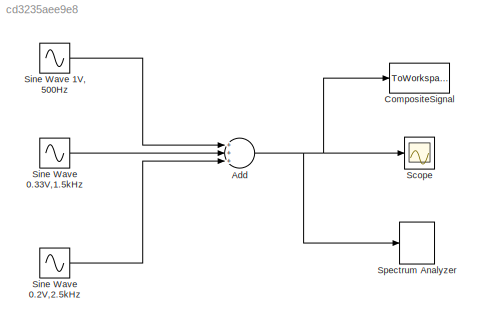
MODEL slx_cd3235aee9e8
KIND model
CONFIG AbsTol = auto
CONFIG EnableMultiTasking = off
CONFIG FixedStep = auto
CONFIG MaxStep = auto
CONFIG MinStep = auto
CONFIG RelTol = 1e-3
CONFIG SampleTimeConstraint = Unconstrained
CONFIG Solver = VariableStepAuto
CONFIG SolverName = VariableStepAuto
CONFIG StartTime = 0.0
CONFIG StopTime = 5e-2
BLOCK [Sum] Add
  InputSameDT = off
  Inputs = +++
  OutDataTypeStr = Inherit: Inherit via internal rule
  Ports = [3, 1]
  SaturateOnIntegerOverflow = off
BLOCK [ToWorkspace] CompositeSignal
  FixptAsFi = on
  MaxDataPoints = inf
  Ports = [1]
  SampleTime = -1
  Save2DSignal = 3-D array (concatenate along third dimension)
  SaveFormat = Timeseries
  VariableName = simout
BLOCK [Scope] Scope
  Floating = off
  NumInputPorts = 1
  Ports = [1]
  ScopeSpecificationString = Simulink.scopes.TimeScopeBlockCfg('CurrentConfiguration', extmgr.ConfigurationSet(extmgr.Configuration('Core','General UI',true),extmgr.Configuration('Core','Source UI',true),extmgr.Configuration('Sources','WiredSimulink',true),extmgr.Configuration('Visuals','Time Domain',true,'SerializedDisplays',{struct('MinYLimReal','-1.16667','MaxYLimReal','1.16667','YLabelReal','','MinYLimMag','0.00000','MaxY...<+1323ch>
BLOCK [Sin] Sine Wave 0.2V,2.5kHz
  Amplitude = 1/5
  Frequency = 2*pi*2.5e3
  Ports = [0, 1]
  SampleTime = 0.25e-6
BLOCK [Sin] Sine Wave 0.33V,1.5kHz
  Amplitude = 1/3
  Frequency = 2*pi*1500
  Ports = [0, 1]
  SampleTime = 0.25e-6
BLOCK [Sin] Sine Wave 1V, 500Hz
  Frequency = 2*pi*500
  Ports = [0, 1]
  SampleTime = 0.25e-6
BLOCK [SpectrumAnalyzer] Spectrum Analyzer
  Ports = [1]
  ScopeSpecificationString = spbscopes.SpectrumAnalyzerBlockCfg('CurrentConfiguration', extmgr.ConfigurationSet(extmgr.Configuration('Core','General UI',true),extmgr.Configuration('Core','Source UI',true),extmgr.Configuration('Sources','WiredSimulink',true),extmgr.Configuration('Visuals','Spectrum',true,'AxesProperties',struct('Color',{[0 0 0],[0 0 0]},'XColor',{[0.686274509803922 0.686274509803922 0.686274509803922],[0.68627...<+2462ch>
NET Add:1 -> CompositeSignal:1, Scope:1, Spectrum Analyzer:1
LINE Sine Wave 0.2V,2.5kHz:1 -> Add:3
LINE Sine Wave 0.33V,1.5kHz:1 -> Add:2
LINE Sine Wave 1V, 500Hz:1 -> Add:1
note: NET lines group one-source signal fan-out (src -> all destinations, sorted); 1:1 wires keep LINE
